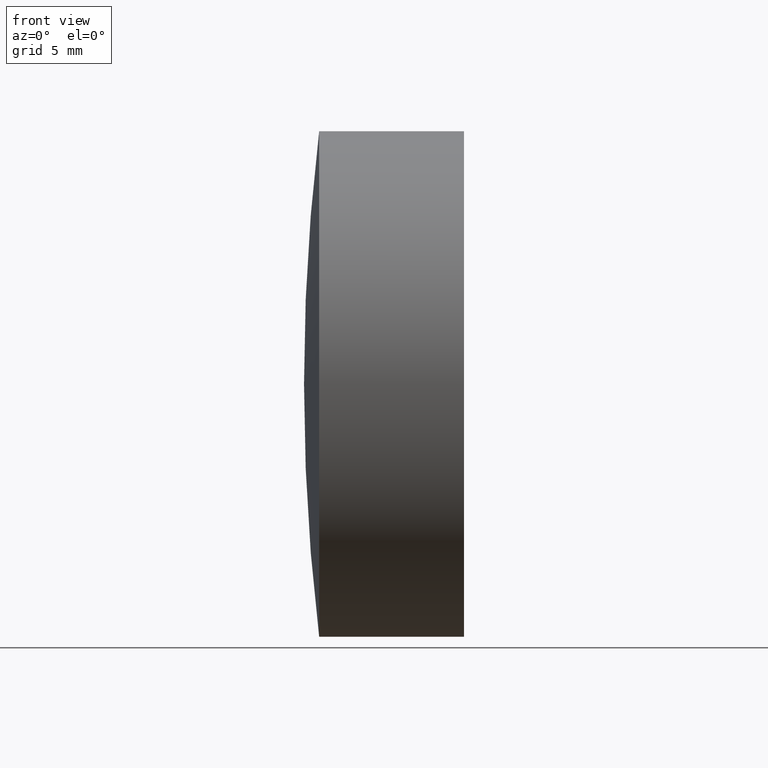
[diagram: clean part render]
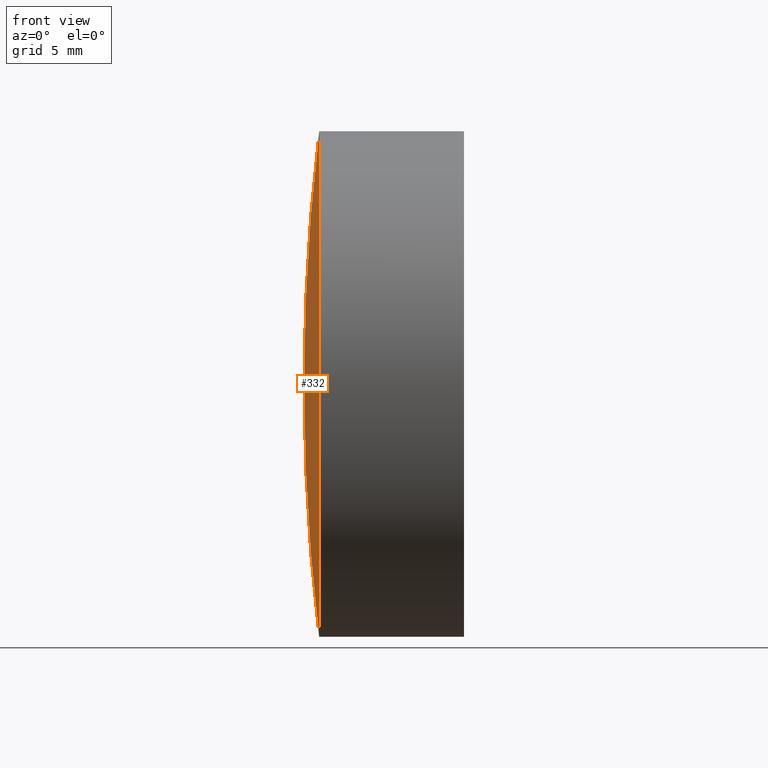
[diagram: same view with one face highlighted and labeled with its STEP entity id]
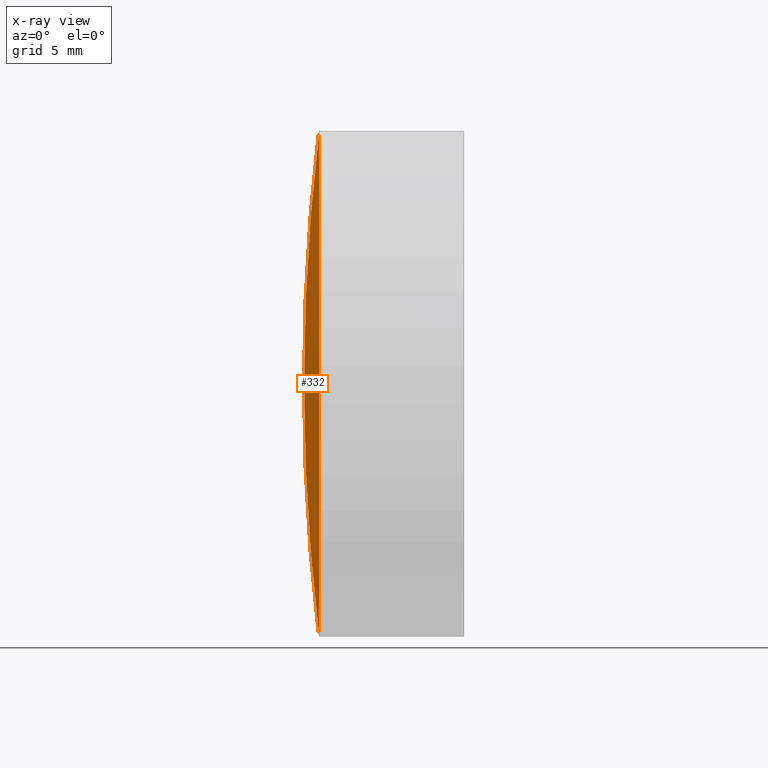
[diagram: x-ray of the same camera — body ghosted, the highlighted face saturated]
A machine part, front view. The second image highlights one B-rep face of the part: STEP entity #332.
The next image is the same camera in x-ray: the body ghosted, the highlighted face saturated — about 0% of this face is hidden behind the body in this view.
In plain terms, the highlighted spherical surface has radius 106.4 mm.
Its self-contained STEP definition (entity closure, byte-faithful):
#4 = CARTESIAN_POINT ( 'NONE',  ( 449.0001259381126600, 0.0000000000000000000, 7.129305772232010000E-015 ) ) ;
#14 = CARTESIAN_POINT ( 'NONE',  ( 343.3607866747492500, 0.0000000000000000000, -12.69999999999999200 ) ) ;
#22 = CIRCLE ( 'NONE', #224, 12.70000000000000600 ) ;
#25 = DIRECTION ( 'NONE',  ( -0.0000000000000000000, -1.000000000000000000, -0.0000000000000000000 ) ) ;
#52 = CARTESIAN_POINT ( 'NONE',  ( 342.6001259381126800, 0.0000000000000000000, 6.141848007680913600E-016 ) ) ;
#72 = AXIS2_PLACEMENT_3D ( 'NONE', #321, #135, #294 ) ;
#74 = VERTEX_POINT ( 'NONE', #215 ) ;
#78 = CARTESIAN_POINT ( 'NONE',  ( 449.0001259381126600, 0.0000000000000000000, 7.129305772232010000E-015 ) ) ;
#135 = DIRECTION ( 'NONE',  ( 0.0000000000000000000, -1.000000000000000000, -1.224646799147353200E-016 ) ) ;
#138 = DIRECTION ( 'NONE',  ( -1.000000000000000000, -0.0000000000000000000, -0.0000000000000000000 ) ) ;
#145 = FACE_OUTER_BOUND ( 'NONE', #152, .T. ) ;
#149 = EDGE_CURVE ( 'NONE', #74, #347, #197, .T. ) ;
#152 = EDGE_LOOP ( 'NONE', ( #222, #199, #200 ) ) ;
#159 = DIRECTION ( 'NONE',  ( 0.0000000000000000000, 1.000000000000000000, -0.0000000000000000000 ) ) ;
#172 = EDGE_CURVE ( 'NONE', #319, #347, #340, .T. ) ;
#177 = SPHERICAL_SURFACE ( 'NONE', #204, 106.3999999999999900 ) ;
#180 = DIRECTION ( 'NONE',  ( 0.0000000000000000000, 0.0000000000000000000, -1.000000000000000000 ) ) ;
#197 = CIRCLE ( 'NONE', #72, 106.3999999999999900 ) ;
#199 = ORIENTED_EDGE ( 'NONE', *, *, #149, .T. ) ;
#200 = ORIENTED_EDGE ( 'NONE', *, *, #172, .F. ) ;
#204 = AXIS2_PLACEMENT_3D ( 'NONE', #78, #25, #180 ) ;
#215 = CARTESIAN_POINT ( 'NONE',  ( 343.3607866747492500, -1.555301434917137800E-015, 12.69999999999999900 ) ) ;
#222 = ORIENTED_EDGE ( 'NONE', *, *, #344, .T. ) ;
#224 = AXIS2_PLACEMENT_3D ( 'NONE', #328, #138, #298 ) ;
#276 = AXIS2_PLACEMENT_3D ( 'NONE', #4, #159, #320 ) ;
#294 = DIRECTION ( 'NONE',  ( 0.0000000000000000000, 1.224646799147353200E-016, -1.000000000000000000 ) ) ;
#298 = DIRECTION ( 'NONE',  ( 0.0000000000000000000, 0.0000000000000000000, 1.000000000000000000 ) ) ;
#319 = VERTEX_POINT ( 'NONE', #14 ) ;
#320 = DIRECTION ( 'NONE',  ( 0.0000000000000000000, 0.0000000000000000000, 1.000000000000000000 ) ) ;
#321 = CARTESIAN_POINT ( 'NONE',  ( 449.0001259381126600, 0.0000000000000000000, 7.129305772232010000E-015 ) ) ;
#328 = CARTESIAN_POINT ( 'NONE',  ( 343.3607866747492500, 0.0000000000000000000, 0.0000000000000000000 ) ) ;
#332 = ADVANCED_FACE ( 'NONE', ( #145 ), #177, .T. ) ;
#340 = CIRCLE ( 'NONE', #276, 106.3999999999999900 ) ;
#344 = EDGE_CURVE ( 'NONE', #319, #74, #22, .T. ) ;
#347 = VERTEX_POINT ( 'NONE', #52 ) ;